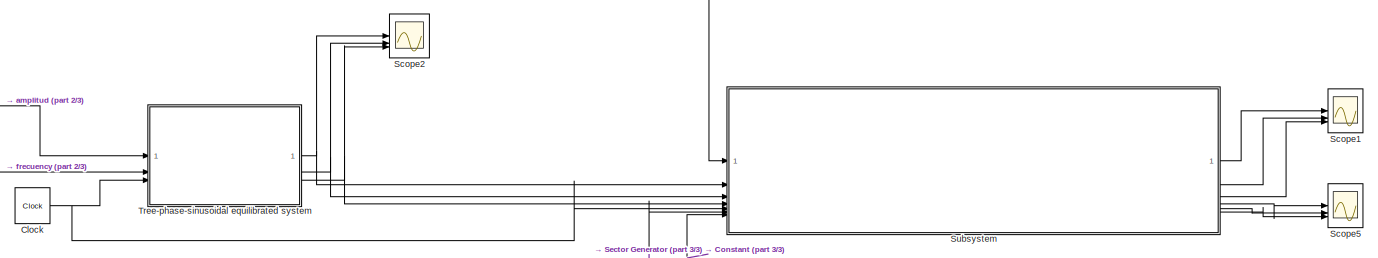
[diagram: root canvas - part 1/3, full width, top band]
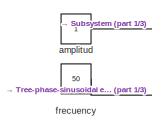
[diagram: root canvas - part 2/3, middle left region]
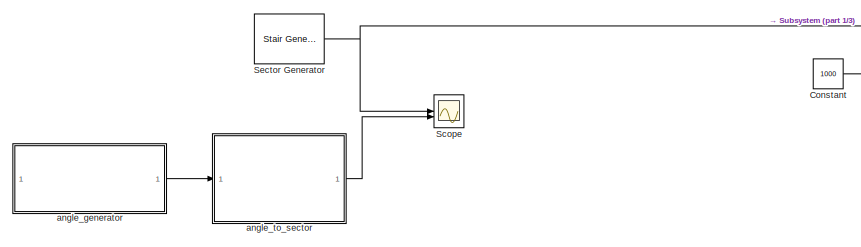
[diagram: root canvas - part 3/3, bottom left region]
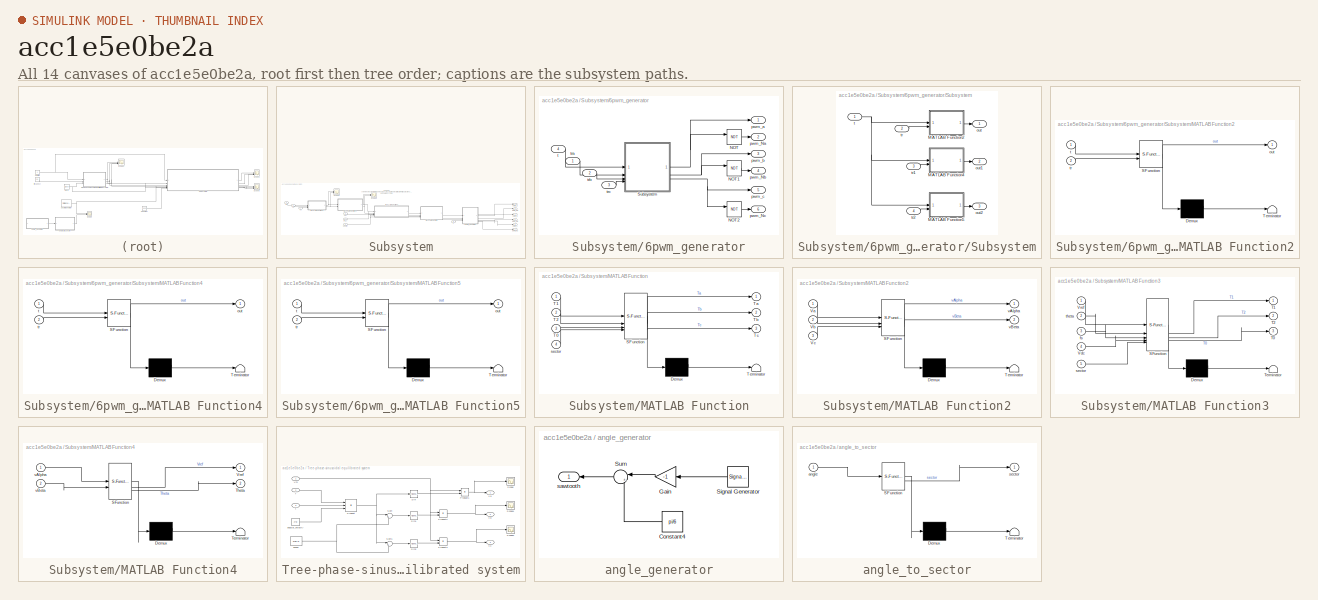
[diagram: thumbnail index - all 14 canvases of the model, root first then tree order]
MODEL slx_acc1e5e0be2a
KIND model
CONFIG AbsTol = auto
CONFIG EnableMultiTasking = off
CONFIG FixedStep = auto
CONFIG MaxStep = 0.00001
CONFIG MinStep = auto
CONFIG RelTol = 1e-3
CONFIG SampleTimeConstraint = Unconstrained
CONFIG SolverName = VariableStepAuto
CONFIG StartTime = 0.0
CONFIG StopTime = 0.02
BLOCK [Clock] Clock
  DisplayTime = on
BLOCK [Constant] Constant
  Value = 1000
BLOCK [Scope] Scope
  Floating = off
  NumInputPorts = 2
  ScopeSpecificationString = Simulink.scopes.TimeScopeBlockCfg('CurrentConfiguration', extmgr.ConfigurationSet(extmgr.Configuration('Core','General UI',true),extmgr.Configuration('Core','Source UI',true),extmgr.Configuration('Sources','WiredSimulink',true,'DataLoggingVariableName','ScopeData2'),extmgr.Configuration('Visuals','Time Domain',true,'SerializedDisplays',{struct('MinYLimReal','-0.75','MaxYLimReal','6.75','YLabelReal...<+1448ch>
BLOCK [Scope] Scope1
  Floating = off
  NumInputPorts = 3
  ScopeSpecificationString = Simulink.scopes.TimeScopeBlockCfg('CurrentConfiguration', extmgr.ConfigurationSet(extmgr.Configuration('Core','General UI',true),extmgr.Configuration('Core','Source UI',true),extmgr.Configuration('Sources','WiredSimulink',true,'DataLoggingVariableName','ScopeData4'),extmgr.Configuration('Visuals','Time Domain',true,'SerializedDisplays',{struct('MinYLimReal','-0.125','MaxYLimReal','1.125','YLabelRe...<+1504ch>
BLOCK [Scope] Scope2
  Floating = off
  NumInputPorts = 3
  ScopeSpecificationString = Simulink.scopes.TimeScopeBlockCfg('CurrentConfiguration', extmgr.ConfigurationSet(extmgr.Configuration('Core','General UI',true),extmgr.Configuration('Core','Source UI',true),extmgr.Configuration('Sources','WiredSimulink',true,'DataLoggingVariableName','ScopeData2'),extmgr.Configuration('Visuals','Time Domain',true,'SerializedDisplays',{struct('MinYLimReal','-1.25','MaxYLimReal','1.25','YLabelReal...<+1507ch>
BLOCK [Scope] Scope5
  Floating = off
  NumInputPorts = 3
  ScopeSpecificationString = Simulink.scopes.TimeScopeBlockCfg('CurrentConfiguration', extmgr.ConfigurationSet(extmgr.Configuration('Core','General UI',true),extmgr.Configuration('Core','Source UI',true),extmgr.Configuration('Sources','WiredSimulink',true,'DataLoggingVariableName','ScopeData5'),extmgr.Configuration('Visuals','Time Domain',true,'SerializedDisplays',{struct('MinYLimReal','-0.125','MaxYLimReal','1.125','YLabelRe...<+1500ch>
BLOCK [Reference] Sector Generator  REF=eeStairGenerator/Stair Generator
  LibrarySourceBlock = ee_sl_lib/General Control/Stair Generator
  SourceBlock = eeStairGenerator/Stair Generator
  SourceType = Stair Generator
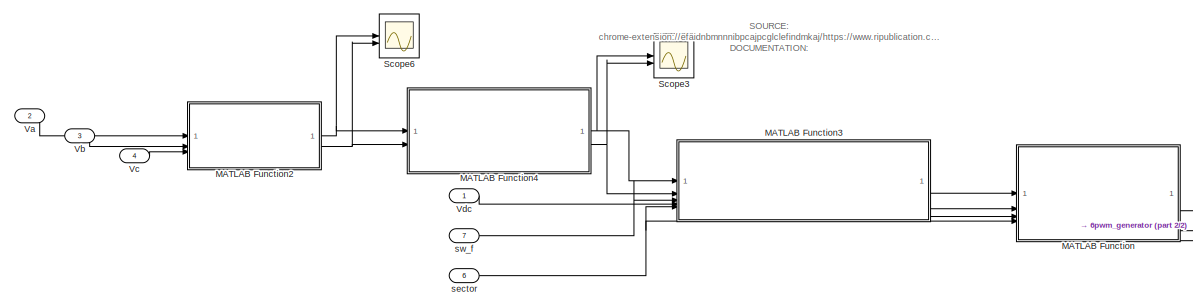
[diagram: Subsystem - part 1/2, center side, full height]
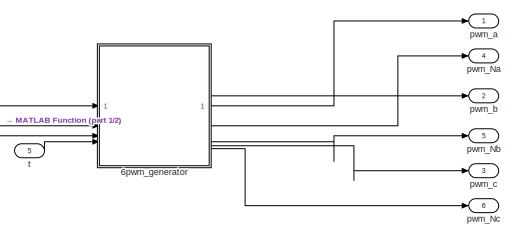
[diagram: Subsystem - part 2/2, middle right region]
BLOCK [SubSystem] Subsystem
BLOCK [SubSystem] Subsystem/6pwm_generator
BLOCK [Logic] Subsystem/6pwm_generator/NOT
  AllPortsSameDT = off
  IconShape = distinctive
  Operator = NOT
  OutDataTypeStr = boolean
BLOCK [Logic] Subsystem/6pwm_generator/NOT1
  AllPortsSameDT = off
  IconShape = distinctive
  Operator = NOT
  OutDataTypeStr = boolean
BLOCK [Logic] Subsystem/6pwm_generator/NOT2
  AllPortsSameDT = off
  IconShape = distinctive
  Operator = NOT
  OutDataTypeStr = boolean
BLOCK [SubSystem] Subsystem/6pwm_generator/Subsystem
BLOCK [SubSystem] Subsystem/6pwm_generator/Subsystem/MATLAB Function2
  ErrorFcn = Stateflow.Translate.translate
  LibrarySourceBlock = simulink/User-Defined\nFunctions/MATLAB Function
  PermitHierarchicalResolution = ExplicitOnly
  SFBlockType = MATLAB Function
  TreatAsAtomicUnit = on
BLOCK [Demux] Subsystem/6pwm_generator/Subsystem/MATLAB Function2/ Demux 
  Outputs = 1
BLOCK [S-Function] Subsystem/6pwm_generator/Subsystem/MATLAB Function2/ SFunction 
  EnableBusSupport = on
  FunctionName = sf_sfun
  PortCounts = [2 2]
  SFcnIsStateOwnerBlock = off
  SFunctionDeploymentMode = off
  Tag = Stateflow S-Function 4
BLOCK [Terminator] Subsystem/6pwm_generator/Subsystem/MATLAB Function2/ Terminator 
BLOCK [Outport] Subsystem/6pwm_generator/Subsystem/MATLAB Function2/out
BLOCK [Inport] Subsystem/6pwm_generator/Subsystem/MATLAB Function2/t
BLOCK [Inport] Subsystem/6pwm_generator/Subsystem/MATLAB Function2/tr
  Port = 2
BLOCK [SubSystem] Subsystem/6pwm_generator/Subsystem/MATLAB Function4
  ErrorFcn = Stateflow.Translate.translate
  LibrarySourceBlock = simulink/User-Defined\nFunctions/MATLAB Function
  PermitHierarchicalResolution = ExplicitOnly
  SFBlockType = MATLAB Function
  TreatAsAtomicUnit = on
BLOCK [Demux] Subsystem/6pwm_generator/Subsystem/MATLAB Function4/ Demux 
  Outputs = 1
BLOCK [S-Function] Subsystem/6pwm_generator/Subsystem/MATLAB Function4/ SFunction 
  EnableBusSupport = on
  FunctionName = sf_sfun
  PortCounts = [2 2]
  SFcnIsStateOwnerBlock = off
  SFunctionDeploymentMode = off
  Tag = Stateflow S-Function 5
BLOCK [Terminator] Subsystem/6pwm_generator/Subsystem/MATLAB Function4/ Terminator 
BLOCK [Outport] Subsystem/6pwm_generator/Subsystem/MATLAB Function4/out
BLOCK [Inport] Subsystem/6pwm_generator/Subsystem/MATLAB Function4/t
BLOCK [Inport] Subsystem/6pwm_generator/Subsystem/MATLAB Function4/tr
  Port = 2
BLOCK [SubSystem] Subsystem/6pwm_generator/Subsystem/MATLAB Function5
  ErrorFcn = Stateflow.Translate.translate
  LibrarySourceBlock = simulink/User-Defined\nFunctions/MATLAB Function
  PermitHierarchicalResolution = ExplicitOnly
  SFBlockType = MATLAB Function
  TreatAsAtomicUnit = on
BLOCK [Demux] Subsystem/6pwm_generator/Subsystem/MATLAB Function5/ Demux 
  Outputs = 1
BLOCK [S-Function] Subsystem/6pwm_generator/Subsystem/MATLAB Function5/ SFunction 
  EnableBusSupport = on
  FunctionName = sf_sfun
  PortCounts = [2 2]
  SFcnIsStateOwnerBlock = off
  SFunctionDeploymentMode = off
  Tag = Stateflow S-Function 6
BLOCK [Terminator] Subsystem/6pwm_generator/Subsystem/MATLAB Function5/ Terminator 
BLOCK [Outport] Subsystem/6pwm_generator/Subsystem/MATLAB Function5/out
BLOCK [Inport] Subsystem/6pwm_generator/Subsystem/MATLAB Function5/t
BLOCK [Inport] Subsystem/6pwm_generator/Subsystem/MATLAB Function5/tr
  Port = 2
BLOCK [Outport] Subsystem/6pwm_generator/Subsystem/out
BLOCK [Outport] Subsystem/6pwm_generator/Subsystem/out1
  Port = 2
BLOCK [Outport] Subsystem/6pwm_generator/Subsystem/out2
  Port = 3
BLOCK [Inport] Subsystem/6pwm_generator/Subsystem/t
BLOCK [Inport] Subsystem/6pwm_generator/Subsystem/tr
  Port = 2
BLOCK [Inport] Subsystem/6pwm_generator/Subsystem/tr1
  Port = 3
BLOCK [Inport] Subsystem/6pwm_generator/Subsystem/tr2
  Port = 4
BLOCK [Outport] Subsystem/6pwm_generator/pwm_Na
  Port = 2
BLOCK [Outport] Subsystem/6pwm_generator/pwm_Nb
  Port = 4
BLOCK [Outport] Subsystem/6pwm_generator/pwm_Nc
  Port = 6
BLOCK [Outport] Subsystem/6pwm_generator/pwm_a
BLOCK [Outport] Subsystem/6pwm_generator/pwm_b
  Port = 3
BLOCK [Outport] Subsystem/6pwm_generator/pwm_c
  Port = 5
BLOCK [Inport] Subsystem/6pwm_generator/t
  Port = 4
BLOCK [Inport] Subsystem/6pwm_generator/tra
BLOCK [Inport] Subsystem/6pwm_generator/trb
  Port = 2
BLOCK [Inport] Subsystem/6pwm_generator/trc
  Port = 3
BLOCK [SubSystem] Subsystem/MATLAB Function
  ErrorFcn = Stateflow.Translate.translate
  LibrarySourceBlock = simulink/User-Defined\nFunctions/MATLAB Function
  PermitHierarchicalResolution = ExplicitOnly
  SFBlockType = MATLAB Function
  TreatAsAtomicUnit = on
BLOCK [Demux] Subsystem/MATLAB Function/ Demux 
  Outputs = 1
BLOCK [S-Function] Subsystem/MATLAB Function/ SFunction 
  EnableBusSupport = on
  FunctionName = sf_sfun
  PortCounts = [4 4]
  SFcnIsStateOwnerBlock = off
  SFunctionDeploymentMode = off
  Tag = Stateflow S-Function 1
BLOCK [Terminator] Subsystem/MATLAB Function/ Terminator 
BLOCK [Inport] Subsystem/MATLAB Function/T0
  Port = 3
BLOCK [Inport] Subsystem/MATLAB Function/T1
BLOCK [Inport] Subsystem/MATLAB Function/T2
  Port = 2
BLOCK [Outport] Subsystem/MATLAB Function/Ta
BLOCK [Outport] Subsystem/MATLAB Function/Tb
  Port = 2
BLOCK [Outport] Subsystem/MATLAB Function/Tc
  Port = 3
BLOCK [Inport] Subsystem/MATLAB Function/sector
  Port = 4
BLOCK [SubSystem] Subsystem/MATLAB Function2
  ErrorFcn = Stateflow.Translate.translate
  LibrarySourceBlock = simulink/User-Defined\nFunctions/MATLAB Function
  PermitHierarchicalResolution = ExplicitOnly
  SFBlockType = MATLAB Function
  TreatAsAtomicUnit = on
BLOCK [Demux] Subsystem/MATLAB Function2/ Demux 
  Outputs = 1
BLOCK [S-Function] Subsystem/MATLAB Function2/ SFunction 
  EnableBusSupport = on
  FunctionName = sf_sfun
  PortCounts = [3 3]
  SFcnIsStateOwnerBlock = off
  SFunctionDeploymentMode = off
  Tag = Stateflow S-Function 7
BLOCK [Terminator] Subsystem/MATLAB Function2/ Terminator 
BLOCK [Inport] Subsystem/MATLAB Function2/Va
BLOCK [Inport] Subsystem/MATLAB Function2/Vb
  Port = 2
BLOCK [Inport] Subsystem/MATLAB Function2/Vc
  Port = 3
BLOCK [Outport] Subsystem/MATLAB Function2/vAlpha
BLOCK [Outport] Subsystem/MATLAB Function2/vBeta
  Port = 2
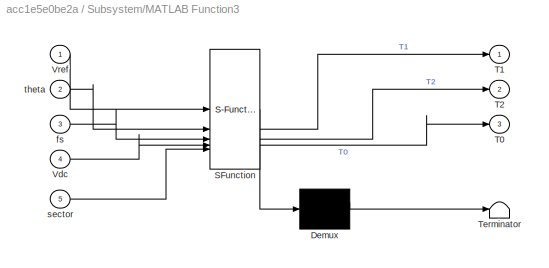
BLOCK [SubSystem] Subsystem/MATLAB Function3
  ErrorFcn = Stateflow.Translate.translate
  LibrarySourceBlock = simulink/User-Defined\nFunctions/MATLAB Function
  PermitHierarchicalResolution = ExplicitOnly
  SFBlockType = MATLAB Function
  TreatAsAtomicUnit = on
BLOCK [Demux] Subsystem/MATLAB Function3/ Demux 
  Outputs = 1
BLOCK [S-Function] Subsystem/MATLAB Function3/ SFunction 
  EnableBusSupport = on
  FunctionName = sf_sfun
  PortCounts = [5 4]
  SFcnIsStateOwnerBlock = off
  SFunctionDeploymentMode = off
  Tag = Stateflow S-Function 3
BLOCK [Terminator] Subsystem/MATLAB Function3/ Terminator 
BLOCK [Outport] Subsystem/MATLAB Function3/T0
  Port = 3
BLOCK [Outport] Subsystem/MATLAB Function3/T1
BLOCK [Outport] Subsystem/MATLAB Function3/T2
  Port = 2
BLOCK [Inport] Subsystem/MATLAB Function3/Vdc
  Port = 4
BLOCK [Inport] Subsystem/MATLAB Function3/Vref
BLOCK [Inport] Subsystem/MATLAB Function3/fs
  Port = 3
BLOCK [Inport] Subsystem/MATLAB Function3/sector
  Port = 5
BLOCK [Inport] Subsystem/MATLAB Function3/theta
  Port = 2
BLOCK [SubSystem] Subsystem/MATLAB Function4
  ErrorFcn = Stateflow.Translate.translate
  LibrarySourceBlock = simulink/User-Defined\nFunctions/MATLAB Function
  PermitHierarchicalResolution = ExplicitOnly
  SFBlockType = MATLAB Function
  TreatAsAtomicUnit = on
BLOCK [Demux] Subsystem/MATLAB Function4/ Demux 
  Outputs = 1
BLOCK [S-Function] Subsystem/MATLAB Function4/ SFunction 
  EnableBusSupport = on
  FunctionName = sf_sfun
  PortCounts = [2 3]
  SFcnIsStateOwnerBlock = off
  SFunctionDeploymentMode = off
  Tag = Stateflow S-Function 8
BLOCK [Terminator] Subsystem/MATLAB Function4/ Terminator 
BLOCK [Outport] Subsystem/MATLAB Function4/Theta
  Port = 2
BLOCK [Outport] Subsystem/MATLAB Function4/Vref
BLOCK [Inport] Subsystem/MATLAB Function4/vAlpha
BLOCK [Inport] Subsystem/MATLAB Function4/vBeta
  Port = 2
BLOCK [Scope] Subsystem/Scope3
  Floating = off
  NumInputPorts = 2
  ScopeSpecificationString = Simulink.scopes.TimeScopeBlockCfg('CurrentConfiguration', extmgr.ConfigurationSet(extmgr.Configuration('Core','General UI',true),extmgr.Configuration('Core','Source UI',true),extmgr.Configuration('Sources','WiredSimulink',true,'DataLoggingVariableName','ScopeData1'),extmgr.Configuration('Visuals','Time Domain',true,'SerializedDisplays',{struct('MinYLimReal','-3.92581','MaxYLimReal','3.92686','YLab...<+1405ch>
BLOCK [Scope] Subsystem/Scope6
  Floating = off
  NumInputPorts = 2
  ScopeSpecificationString = Simulink.scopes.TimeScopeBlockCfg('CurrentConfiguration', extmgr.ConfigurationSet(extmgr.Configuration('Core','General UI',true),extmgr.Configuration('Core','Source UI',true),extmgr.Configuration('Sources','WiredSimulink',true,'DataLoggingVariableName','ScopeData6'),extmgr.Configuration('Visuals','Time Domain',true,'SerializedDisplays',{struct('MinYLimReal','-1.25','MaxYLimReal','1.25','YLabelReal...<+1389ch>
BLOCK [Inport] Subsystem/Va
  Port = 2
BLOCK [Inport] Subsystem/Vb
  Port = 3
BLOCK [Inport] Subsystem/Vc
  Port = 4
BLOCK [Inport] Subsystem/Vdc
BLOCK [Outport] Subsystem/pwm_Na
  Port = 4
BLOCK [Outport] Subsystem/pwm_Nb
  Port = 5
BLOCK [Outport] Subsystem/pwm_Nc
  Port = 6
BLOCK [Outport] Subsystem/pwm_a
BLOCK [Outport] Subsystem/pwm_b
  Port = 2
BLOCK [Outport] Subsystem/pwm_c
  Port = 3
BLOCK [Inport] Subsystem/sector
  Port = 6
BLOCK [Inport] Subsystem/sw_f
  Port = 7
BLOCK [Inport] Subsystem/t
  Port = 5
BLOCK [SubSystem] Tree-phase-sinusoidal equilibrated system
BLOCK [Product] Tree-phase-sinusoidal equilibrated system/Product
  Inputs = 3
BLOCK [Product] Tree-phase-sinusoidal equilibrated system/Product1
BLOCK [Product] Tree-phase-sinusoidal equilibrated system/Product2
BLOCK [Product] Tree-phase-sinusoidal equilibrated system/Product3
BLOCK [Scope] Tree-phase-sinusoidal equilibrated system/Scope
  Floating = off
  NumInputPorts = 1
  ScopeSpecificationString = Simulink.scopes.TimeScopeBlockCfg('CurrentConfiguration', extmgr.ConfigurationSet(extmgr.Configuration('Core','General UI',true),extmgr.Configuration('Core','Source UI',true),extmgr.Configuration('Sources','WiredSimulink',true,'DataLoggingVariableName','ScopeData3'),extmgr.Configuration('Visuals','Time Domain',true,'SerializedDisplays',{struct('MinYLimReal','-1.24753','MaxYLimReal','1.24753','YLab...<+1367ch>
BLOCK [Scope] Tree-phase-sinusoidal equilibrated system/Scope1
  Floating = off
  NumInputPorts = 1
  ScopeSpecificationString = Simulink.scopes.TimeScopeBlockCfg('CurrentConfiguration', extmgr.ConfigurationSet(extmgr.Configuration('Core','General UI',true),extmgr.Configuration('Core','Source UI',true),extmgr.Configuration('Sources','WiredSimulink',true),extmgr.Configuration('Visuals','Time Domain',true),extmgr.Configuration('Tools','Plot Navigation',true),extmgr.Configuration('Tools','Measurements',true)),'Version','2021b'...<+1ch>
BLOCK [Scope] Tree-phase-sinusoidal equilibrated system/Scope2
  Floating = off
  NumInputPorts = 1
  ScopeSpecificationString = Simulink.scopes.TimeScopeBlockCfg('CurrentConfiguration', extmgr.ConfigurationSet(extmgr.Configuration('Core','General UI',true),extmgr.Configuration('Core','Source UI',true),extmgr.Configuration('Sources','WiredSimulink',true,'DataLoggingVariableName','ScopeData1'),extmgr.Configuration('Visuals','Time Domain',true),extmgr.Configuration('Tools','Plot Navigation',true),extmgr.Configuration('Tools',...<+40ch>
BLOCK [Trigonometry] Tree-phase-sinusoidal equilibrated system/Sin
BLOCK [Trigonometry] Tree-phase-sinusoidal equilibrated system/Sin1
BLOCK [Trigonometry] Tree-phase-sinusoidal equilibrated system/Sin2
BLOCK [Sum] Tree-phase-sinusoidal equilibrated system/Sum
  Inputs = |++
BLOCK [Sum] Tree-phase-sinusoidal equilibrated system/Sum1
  Inputs = |+-
BLOCK [Outport] Tree-phase-sinusoidal equilibrated system/Va
BLOCK [Outport] Tree-phase-sinusoidal equilibrated system/Vb
  Port = 2
BLOCK [Outport] Tree-phase-sinusoidal equilibrated system/Vc
  Port = 3
BLOCK [Inport] Tree-phase-sinusoidal equilibrated system/Vm
BLOCK [Constant] Tree-phase-sinusoidal equilibrated system/angular_velocity
  Value = 2*pi
BLOCK [Inport] Tree-phase-sinusoidal equilibrated system/f
  Port = 2
BLOCK [Constant] Tree-phase-sinusoidal equilibrated system/phase
  Value = 2*pi/3
BLOCK [Inport] Tree-phase-sinusoidal equilibrated system/t
  Port = 3
BLOCK [Constant] amplitud
BLOCK [SubSystem] angle_generator
BLOCK [Constant] angle_generator/Constant4
  Value = pi/6
BLOCK [Gain] angle_generator/Gain
  Gain = -1
BLOCK [SignalGenerator] angle_generator/Signal Generator
  Amplitude = pi/6
  Frequency = 0.003
  Units = rad/sec
  WaveForm = sawtooth
BLOCK [Sum] angle_generator/Sum
  Inputs = |++
BLOCK [Outport] angle_generator/sawtooth
BLOCK [SubSystem] angle_to_sector
  ErrorFcn = Stateflow.Translate.translate
  LibrarySourceBlock = simulink/User-Defined\nFunctions/MATLAB Function
  PermitHierarchicalResolution = ExplicitOnly
  SFBlockType = MATLAB Function
  TreatAsAtomicUnit = on
BLOCK [Demux] angle_to_sector/ Demux 
  Outputs = 1
BLOCK [S-Function] angle_to_sector/ SFunction 
  EnableBusSupport = on
  FunctionName = sf_sfun
  PortCounts = [1 2]
  SFcnIsStateOwnerBlock = off
  SFunctionDeploymentMode = off
  Tag = Stateflow S-Function 2
BLOCK [Terminator] angle_to_sector/ Terminator 
BLOCK [Inport] angle_to_sector/angle
BLOCK [Outport] angle_to_sector/sector
BLOCK [Constant] frecuency
  Value = 50
ANNOTATION Subsystem: SOURCE: chrome-extension://efaidnbmnnnibpcajpcglclefindmkaj/https://www.ripublication.com/ijaer18/ijaerv13n1_78.pdf DOCUMENTATION:
NET Clock:1 -> Subsystem:5, Tree-phase-sinusoidal equilibrated system:3
LINE Constant:1 -> Subsystem:7
NET Sector Generator:1 -> Scope:1, Subsystem:6
LINE Subsystem/6pwm_generator/NOT1:1 -> Subsystem/6pwm_generator/pwm_Nb:1
LINE Subsystem/6pwm_generator/NOT2:1 -> Subsystem/6pwm_generator/pwm_Nc:1
LINE Subsystem/6pwm_generator/NOT:1 -> Subsystem/6pwm_generator/pwm_Na:1
LINE Subsystem/6pwm_generator/Subsystem/MATLAB Function2:1 -> Subsystem/6pwm_generator/Subsystem/out:1
LINE Subsystem/6pwm_generator/Subsystem/MATLAB Function4:1 -> Subsystem/6pwm_generator/Subsystem/out1:1
LINE Subsystem/6pwm_generator/Subsystem/MATLAB Function5:1 -> Subsystem/6pwm_generator/Subsystem/out2:1
NET Subsystem/6pwm_generator/Subsystem/t:1 -> Subsystem/6pwm_generator/Subsystem/MATLAB Function2:1, Subsystem/6pwm_generator/Subsystem/MATLAB Function4:1, Subsystem/6pwm_generator/Subsystem/MATLAB Function5:1
LINE Subsystem/6pwm_generator/Subsystem/tr1:1 -> Subsystem/6pwm_generator/Subsystem/MATLAB Function4:2
LINE Subsystem/6pwm_generator/Subsystem/tr2:1 -> Subsystem/6pwm_generator/Subsystem/MATLAB Function5:2
LINE Subsystem/6pwm_generator/Subsystem/tr:1 -> Subsystem/6pwm_generator/Subsystem/MATLAB Function2:2
NET Subsystem/6pwm_generator/Subsystem:1 -> Subsystem/6pwm_generator/NOT:1, Subsystem/6pwm_generator/pwm_a:1
NET Subsystem/6pwm_generator/Subsystem:2 -> Subsystem/6pwm_generator/NOT1:1, Subsystem/6pwm_generator/pwm_b:1
NET Subsystem/6pwm_generator/Subsystem:3 -> Subsystem/6pwm_generator/NOT2:1, Subsystem/6pwm_generator/pwm_c:1
LINE Subsystem/6pwm_generator/t:1 -> Subsystem/6pwm_generator/Subsystem:1
LINE Subsystem/6pwm_generator/tra:1 -> Subsystem/6pwm_generator/Subsystem:2
LINE Subsystem/6pwm_generator/trb:1 -> Subsystem/6pwm_generator/Subsystem:3
LINE Subsystem/6pwm_generator/trc:1 -> Subsystem/6pwm_generator/Subsystem:4
LINE Subsystem/6pwm_generator:1 -> Subsystem/pwm_a:1
LINE Subsystem/6pwm_generator:2 -> Subsystem/pwm_Na:1
LINE Subsystem/6pwm_generator:3 -> Subsystem/pwm_b:1
LINE Subsystem/6pwm_generator:4 -> Subsystem/pwm_Nb:1
LINE Subsystem/6pwm_generator:5 -> Subsystem/pwm_c:1
LINE Subsystem/6pwm_generator:6 -> Subsystem/pwm_Nc:1
NET Subsystem/MATLAB Function2:1 -> Subsystem/MATLAB Function4:1, Subsystem/Scope6:1
NET Subsystem/MATLAB Function2:2 -> Subsystem/MATLAB Function4:2, Subsystem/Scope6:2
LINE Subsystem/MATLAB Function3:1 -> Subsystem/MATLAB Function:1
LINE Subsystem/MATLAB Function3:2 -> Subsystem/MATLAB Function:2
LINE Subsystem/MATLAB Function3:3 -> Subsystem/MATLAB Function:3
NET Subsystem/MATLAB Function4:1 -> Subsystem/MATLAB Function3:1, Subsystem/Scope3:1
NET Subsystem/MATLAB Function4:2 -> Subsystem/MATLAB Function3:2, Subsystem/Scope3:2
LINE Subsystem/MATLAB Function:1 -> Subsystem/6pwm_generator:1
LINE Subsystem/MATLAB Function:2 -> Subsystem/6pwm_generator:2
LINE Subsystem/MATLAB Function:3 -> Subsystem/6pwm_generator:3
LINE Subsystem/Va:1 -> Subsystem/MATLAB Function2:1
LINE Subsystem/Vb:1 -> Subsystem/MATLAB Function2:2
LINE Subsystem/Vc:1 -> Subsystem/MATLAB Function2:3
LINE Subsystem/Vdc:1 -> Subsystem/MATLAB Function3:4
NET Subsystem/sector:1 -> Subsystem/MATLAB Function3:5, Subsystem/MATLAB Function:4
LINE Subsystem/sw_f:1 -> Subsystem/MATLAB Function3:3
LINE Subsystem/t:1 -> Subsystem/6pwm_generator:4
LINE Subsystem:1 -> Scope1:1
LINE Subsystem:2 -> Scope1:2
LINE Subsystem:3 -> Scope1:3
LINE Subsystem:4 -> Scope5:1
LINE Subsystem:5 -> Scope5:2
LINE Subsystem:6 -> Scope5:3
NET Tree-phase-sinusoidal equilibrated system/Product1:1 -> Tree-phase-sinusoidal equilibrated system/Scope:1, Tree-phase-sinusoidal equilibrated system/Va:1
NET Tree-phase-sinusoidal equilibrated system/Product2:1 -> Tree-phase-sinusoidal equilibrated system/Scope1:1, Tree-phase-sinusoidal equilibrated system/Vb:1
NET Tree-phase-sinusoidal equilibrated system/Product3:1 -> Tree-phase-sinusoidal equilibrated system/Scope2:1, Tree-phase-sinusoidal equilibrated system/Vc:1
NET Tree-phase-sinusoidal equilibrated system/Product:1 -> Tree-phase-sinusoidal equilibrated system/Sin:1, Tree-phase-sinusoidal equilibrated system/Sum1:1, Tree-phase-sinusoidal equilibrated system/Sum:1
LINE Tree-phase-sinusoidal equilibrated system/Sin1:1 -> Tree-phase-sinusoidal equilibrated system/Product2:2
LINE Tree-phase-sinusoidal equilibrated system/Sin2:1 -> Tree-phase-sinusoidal equilibrated system/Product3:2
LINE Tree-phase-sinusoidal equilibrated system/Sin:1 -> Tree-phase-sinusoidal equilibrated system/Product1:2
LINE Tree-phase-sinusoidal equilibrated system/Sum1:1 -> Tree-phase-sinusoidal equilibrated system/Sin2:1
LINE Tree-phase-sinusoidal equilibrated system/Sum:1 -> Tree-phase-sinusoidal equilibrated system/Sin1:1
NET Tree-phase-sinusoidal equilibrated system/Vm:1 -> Tree-phase-sinusoidal equilibrated system/Product1:1, Tree-phase-sinusoidal equilibrated system/Product2:1, Tree-phase-sinusoidal equilibrated system/Product3:1
LINE Tree-phase-sinusoidal equilibrated system/angular_velocity:1 -> Tree-phase-sinusoidal equilibrated system/Product:3
LINE Tree-phase-sinusoidal equilibrated system/f:1 -> Tree-phase-sinusoidal equilibrated system/Product:1
NET Tree-phase-sinusoidal equilibrated system/phase:1 -> Tree-phase-sinusoidal equilibrated system/Sum1:2, Tree-phase-sinusoidal equilibrated system/Sum:2
LINE Tree-phase-sinusoidal equilibrated system/t:1 -> Tree-phase-sinusoidal equilibrated system/Product:2
NET Tree-phase-sinusoidal equilibrated system:1 -> Scope2:1, Subsystem:2
NET Tree-phase-sinusoidal equilibrated system:2 -> Scope2:2, Subsystem:3
NET Tree-phase-sinusoidal equilibrated system:3 -> Scope2:3, Subsystem:4
NET amplitud:1 -> Subsystem:1, Tree-phase-sinusoidal equilibrated system:1
LINE angle_generator/Constant4:1 -> angle_generator/Sum:2
LINE angle_generator/Gain:1 -> angle_generator/Sum:1
LINE angle_generator/Signal Generator:1 -> angle_generator/Gain:1
LINE angle_generator/Sum:1 -> angle_generator/sawtooth:1
LINE angle_generator:1 -> angle_to_sector:1
LINE angle_to_sector:1 -> Scope:2
LINE frecuency:1 -> Tree-phase-sinusoidal equilibrated system:2
note: NET lines group one-source signal fan-out (src -> all destinations, sorted); 1:1 wires keep LINE
CHART Subsystem/MATLAB Function states=1 transitions=1
  STATE_LABEL 'eML_blk_kernel()'
  STATE_LABEL 'SCRIPT:\nfunction [Ta, Tb, Tc] = switches(T1, T2, T0, sector)\nswitch sector\n    case 1\n        Ta = T1 + T2 + T0/2\n        Tb = T2 + T0/2\n        Tc = T0/2\n    case 2\n        Ta = T1 + T0/2\n        Tb = T1 + T2 + T0/2\n        Tc = T0/2\n    case 3\n        Ta = T0/2\n        Tb = T1 + T2 + T0/2\n        Tc = T2 + T0/2\n    case 4\n        Ta = T0/2\n        Tb = T1 + T0/2\n        Tc = T1 + T2 + T0/2\n    c...<+218ch>'
CHART angle_to_sector states=1 transitions=1
  STATE_LABEL 'eML_blk_kernel()'
  STATE_LABEL 'SCRIPT:\nfunction sector = angle2sector(angle)\n\nangle = angle * (180/pi)\n\nif angle > 0 & angle <= 60\n    sector = 1\nend\nif angle > 60 & angle <= 120\n    sector = 2\nend\nif angle > 120 & angle <= 180\n    sector = 3\nend\nif angle > -180 & angle <= -120\n    sector = 4\nend\nif angle > -120 & angle <= -60\n    sector = 5\nend\nif angle > -60 & angle <= 0\n    sector = 6\nelse\n    sector = 0\nend\n'
CHART Subsystem/MATLAB Function3 states=1 transitions=1
  STATE_LABEL 'eML_blk_kernel()'
  STATE_LABEL 'SCRIPT:\nfunction [T1, T2, T0] = times(Vref, theta, fs, Vdc, sector)\nTs = 1/fs\nT1 = (sqrt(3)*Ts*abs(Vref))/Vdc * sin((sector/3)*pi-theta)\nT2 = (sqrt(3)*Ts*abs(Vref))/Vdc * sin(theta - ((sector-1)/3)*pi)\nT0 = Ts - (T1 + T2)'
CHART Subsystem/6pwm_generator/Subsystem/MATLAB Function2 states=1 transitions=1
  STATE_LABEL 'eML_blk_kernel()'
  STATE_LABEL 'SCRIPT:\nfunction out = pwm(t,tr)\nif t>=tr\n    out = 1\nelse \n    out = 0\nend\n'
CHART Subsystem/6pwm_generator/Subsystem/MATLAB Function4 states=1 transitions=1
  STATE_LABEL 'eML_blk_kernel()'
  STATE_LABEL 'SCRIPT:\nfunction out = pwm(t,tr)\nif t>=tr\n    out = 1\nelse \n    out = 0\nend\n'
CHART Subsystem/6pwm_generator/Subsystem/MATLAB Function5 states=1 transitions=1
  STATE_LABEL 'eML_blk_kernel()'
  STATE_LABEL 'SCRIPT:\nfunction out = pwm(t,tr)\nif t>=tr\n    out = 1\nelse \n    out = 0\nend\n'
CHART Subsystem/MATLAB Function2 states=1 transitions=1
  STATE_LABEL 'eML_blk_kernel()'
  STATE_LABEL 'SCRIPT:\nfunction [vAlpha,vBeta] = alpha_beta(Va, Vb, Vc)\nvAlpha = (2/3)*Va - (1/3)*Vb - (1/3)*Vc;\nvBeta = (sqrt(3)/3)*Vb - (sqrt(3)/3)*Vc;\n'
CHART Subsystem/MATLAB Function4 states=1 transitions=1
  STATE_LABEL 'eML_blk_kernel()'
  STATE_LABEL 'SCRIPT:\nfunction [Vref,Theta] = generate_vref_theta(vAlpha, vBeta)\n  Vref = sqrt((vAlpha^2) + (vBeta^2));\n  Theta = atan2(vBeta, vAlpha);\n'
CHART  states=0 transitions=0
CHART  states=0 transitions=0
CHART  states=0 transitions=0
CHART  states=0 transitions=0
CHART  states=0 transitions=0
CHART  states=0 transitions=0
CHART  states=0 transitions=0
CHART  states=0 transitions=0
